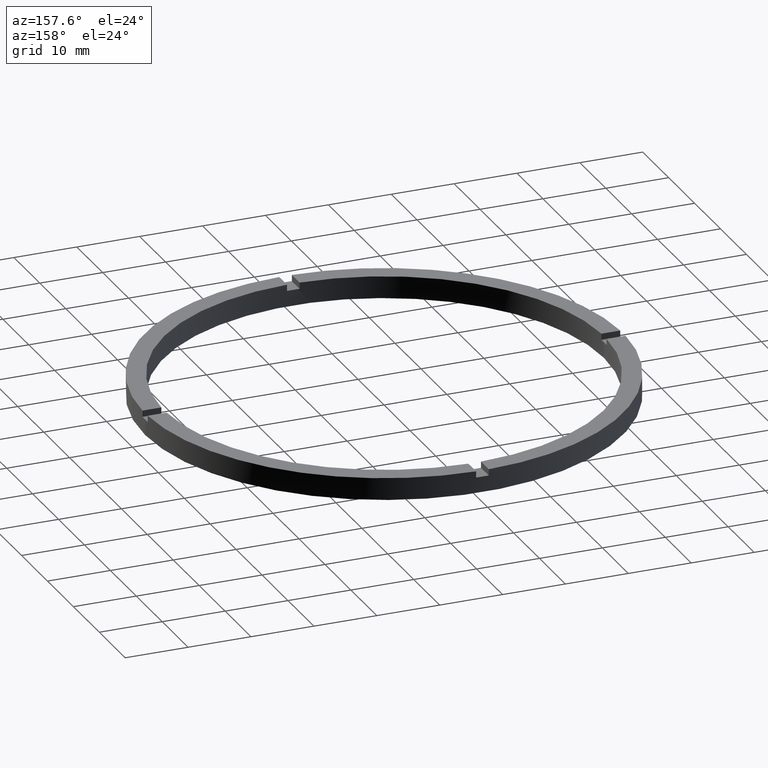
[diagram: clean part render]
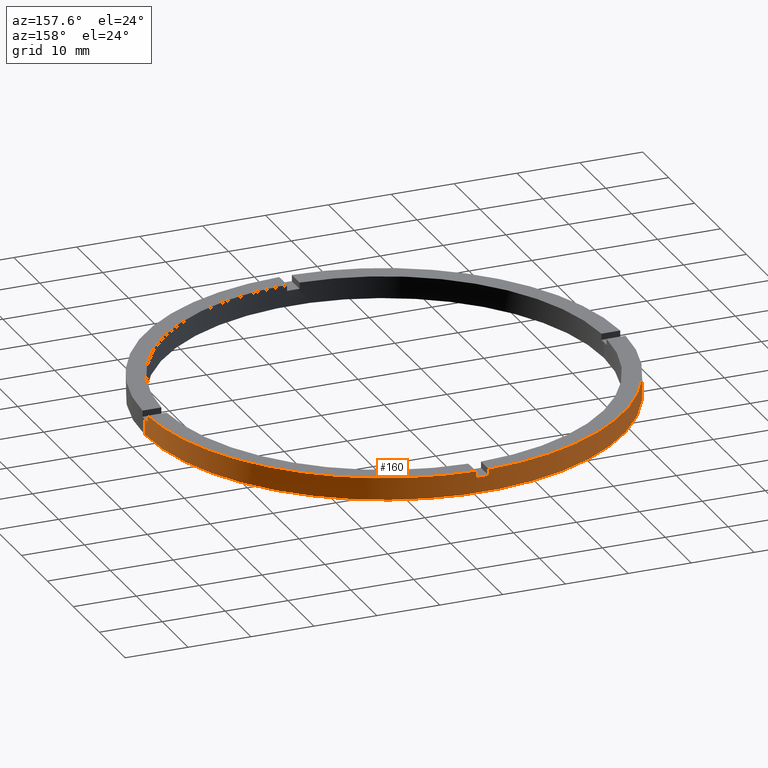
[diagram: same view with one face highlighted and labeled with its STEP entity id]
A machine part, auxiliary view. The second image highlights one B-rep face of the part: STEP entity #160.
In plain terms, the highlighted cylindrical surface (partial cylindrical patch) has radius 38 mm, axis along (-0, -0, -1).
Its self-contained STEP definition (entity closure, byte-faithful):
#6 = DIRECTION ( 'NONE',  ( 0.000000000000000000, -0.000000000000000000, 1.000000000000000000 ) ) ;
#25 = LINE ( 'NONE', #98, #282 ) ;
#26 = EDGE_CURVE ( 'NONE', #92, #496, #721, .T. ) ;
#33 = DIRECTION ( 'NONE',  ( 0.000000000000000000, 0.000000000000000000, 1.000000000000000000 ) ) ;
#34 = CARTESIAN_POINT ( 'NONE',  ( 0.9999999999999746869, 37.98683982644515567, 3.500000000000000000 ) ) ;
#38 = DIRECTION ( 'NONE',  ( -0.000000000000000000, -0.000000000000000000, -1.000000000000000000 ) ) ;
#39 = EDGE_CURVE ( 'NONE', #402, #496, #213, .T. ) ;
#41 = CIRCLE ( 'NONE', #400, 38.00000000000000000 ) ;
#44 = DIRECTION ( 'NONE',  ( 0.000000000000000000, 0.000000000000000000, 1.000000000000000000 ) ) ;
#46 = CARTESIAN_POINT ( 'NONE',  ( 0.000000000000000000, 0.000000000000000000, 2.500000000000000000 ) ) ;
#54 = CARTESIAN_POINT ( 'NONE',  ( 0.000000000000000000, 0.000000000000000000, 3.500000000000000000 ) ) ;
#62 = CARTESIAN_POINT ( 'NONE',  ( -38.00000000000000000, 0.000000000000000000, 2.500000000000000000 ) ) ;
#79 = ORIENTED_EDGE ( 'NONE', *, *, #635, .F. ) ;
#90 = CIRCLE ( 'NONE', #563, 38.00000000000000000 ) ;
#92 = VERTEX_POINT ( 'NONE', #672 ) ;
#98 = CARTESIAN_POINT ( 'NONE',  ( -37.98683982644515567, 0.9999999999999722444, 3.500000000000000000 ) ) ;
#108 = ORIENTED_EDGE ( 'NONE', *, *, #26, .F. ) ;
#110 = ORIENTED_EDGE ( 'NONE', *, *, #199, .T. ) ;
#160 = ADVANCED_FACE ( 'NONE', ( #457 ), #208, .T. ) ;
#171 = VERTEX_POINT ( 'NONE', #508 ) ;
#191 = VERTEX_POINT ( 'NONE', #313 ) ;
#197 = ORIENTED_EDGE ( 'NONE', *, *, #422, .F. ) ;
#199 = EDGE_CURVE ( 'NONE', #665, #476, #728, .T. ) ;
#205 = VECTOR ( 'NONE', #614, 1000.000000000000000 ) ;
#206 = CARTESIAN_POINT ( 'NONE',  ( 0.000000000000000000, 0.000000000000000000, 2.500000000000000000 ) ) ;
#208 = CYLINDRICAL_SURFACE ( 'NONE', #666, 38.00000000000000000 ) ;
#213 = LINE ( 'NONE', #418, #701 ) ;
#218 = ORIENTED_EDGE ( 'NONE', *, *, #39, .T. ) ;
#228 = DIRECTION ( 'NONE',  ( 0.000000000000000000, 0.000000000000000000, 1.000000000000000000 ) ) ;
#229 = VERTEX_POINT ( 'NONE', #62 ) ;
#234 = EDGE_CURVE ( 'NONE', #229, #746, #462, .T. ) ;
#235 = VERTEX_POINT ( 'NONE', #525 ) ;
#242 = CARTESIAN_POINT ( 'NONE',  ( -38.00000000000000000, 0.000000000000000000, 3.500000000000000000 ) ) ;
#252 = ORIENTED_EDGE ( 'NONE', *, *, #324, .T. ) ;
#253 = ORIENTED_EDGE ( 'NONE', *, *, #274, .T. ) ;
#262 = DIRECTION ( 'NONE',  ( -0.000000000000000000, -0.000000000000000000, -1.000000000000000000 ) ) ;
#264 = EDGE_CURVE ( 'NONE', #621, #191, #475, .T. ) ;
#268 = CARTESIAN_POINT ( 'NONE',  ( 0.9999999999999746869, 37.98683982644515567, 2.500000000000000000 ) ) ;
#274 = EDGE_CURVE ( 'NONE', #92, #235, #729, .T. ) ;
#282 = VECTOR ( 'NONE', #228, 1000.000000000000000 ) ;
#291 = DIRECTION ( 'NONE',  ( -0.000000000000000000, -0.000000000000000000, -1.000000000000000000 ) ) ;
#313 = CARTESIAN_POINT ( 'NONE',  ( 38.00000000000000000, 4.653657836759941941E-15, 0.000000000000000000 ) ) ;
#319 = DIRECTION ( 'NONE',  ( 0.000000000000000000, 0.000000000000000000, 1.000000000000000000 ) ) ;
#324 = EDGE_CURVE ( 'NONE', #606, #171, #25, .T. ) ;
#333 = EDGE_CURVE ( 'NONE', #606, #229, #41, .T. ) ;
#397 = DIRECTION ( 'NONE',  ( 1.000000000000000000, 0.000000000000000000, 0.000000000000000000 ) ) ;
#400 = AXIS2_PLACEMENT_3D ( 'NONE', #206, #319, #397 ) ;
#402 = VERTEX_POINT ( 'NONE', #268 ) ;
#418 = CARTESIAN_POINT ( 'NONE',  ( 0.9999999999999746869, 37.98683982644515567, 3.500000000000000000 ) ) ;
#419 = CARTESIAN_POINT ( 'NONE',  ( 0.000000000000000000, 0.000000000000000000, 0.000000000000000000 ) ) ;
#422 = EDGE_CURVE ( 'NONE', #665, #171, #568, .T. ) ;
#439 = DIRECTION ( 'NONE',  ( -0.000000000000000000, -0.000000000000000000, -1.000000000000000000 ) ) ;
#456 = ORIENTED_EDGE ( 'NONE', *, *, #640, .F. ) ;
#457 = FACE_OUTER_BOUND ( 'NONE', #486, .T. ) ;
#462 = LINE ( 'NONE', #242, #690 ) ;
#469 = VECTOR ( 'NONE', #262, 1000.000000000000000 ) ;
#470 = DIRECTION ( 'NONE',  ( 1.000000000000000000, 0.000000000000000000, 0.000000000000000000 ) ) ;
#471 = ORIENTED_EDGE ( 'NONE', *, *, #234, .F. ) ;
#475 = LINE ( 'NONE', #663, #738 ) ;
#476 = VERTEX_POINT ( 'NONE', #595 ) ;
#477 = EDGE_CURVE ( 'NONE', #191, #746, #581, .T. ) ;
#486 = EDGE_LOOP ( 'NONE', ( #79, #494, #618, #471, #634, #252, #197, #110, #456, #218, #108, #253 ) ) ;
#494 = ORIENTED_EDGE ( 'NONE', *, *, #264, .T. ) ;
#496 = VERTEX_POINT ( 'NONE', #34 ) ;
#499 = DIRECTION ( 'NONE',  ( 1.000000000000000000, 0.000000000000000000, 0.000000000000000000 ) ) ;
#508 = CARTESIAN_POINT ( 'NONE',  ( -37.98683982644515567, 0.9999999999999722444, 3.500000000000000000 ) ) ;
#515 = AXIS2_PLACEMENT_3D ( 'NONE', #575, #689, #470 ) ;
#525 = CARTESIAN_POINT ( 'NONE',  ( 37.98683982644516277, 0.9999999999998425704, 2.500000000000000000 ) ) ;
#540 = CARTESIAN_POINT ( 'NONE',  ( -37.98683982644515567, 0.9999999999999722444, 2.500000000000000000 ) ) ;
#549 = DIRECTION ( 'NONE',  ( 1.000000000000000000, 0.000000000000000000, 0.000000000000000000 ) ) ;
#563 = AXIS2_PLACEMENT_3D ( 'NONE', #46, #6, #499 ) ;
#567 = AXIS2_PLACEMENT_3D ( 'NONE', #603, #44, #765 ) ;
#568 = CIRCLE ( 'NONE', #676, 38.00000000000000000 ) ;
#570 = DIRECTION ( 'NONE',  ( 1.000000000000000000, 0.000000000000000000, 0.000000000000000000 ) ) ;
#575 = CARTESIAN_POINT ( 'NONE',  ( 0.000000000000000000, 0.000000000000000000, 2.500000000000000000 ) ) ;
#581 = CIRCLE ( 'NONE', #620, 38.00000000000000000 ) ;
#595 = CARTESIAN_POINT ( 'NONE',  ( -1.000000000000025313, 37.98683982644515567, 2.500000000000000000 ) ) ;
#603 = CARTESIAN_POINT ( 'NONE',  ( 0.000000000000000000, 0.000000000000000000, 3.500000000000000000 ) ) ;
#606 = VERTEX_POINT ( 'NONE', #540 ) ;
#612 = CIRCLE ( 'NONE', #515, 38.00000000000000000 ) ;
#614 = DIRECTION ( 'NONE',  ( -0.000000000000000000, -0.000000000000000000, -1.000000000000000000 ) ) ;
#618 = ORIENTED_EDGE ( 'NONE', *, *, #477, .T. ) ;
#620 = AXIS2_PLACEMENT_3D ( 'NONE', #419, #777, #570 ) ;
#621 = VERTEX_POINT ( 'NONE', #696 ) ;
#631 = CARTESIAN_POINT ( 'NONE',  ( -38.00000000000000000, 0.000000000000000000, 0.000000000000000000 ) ) ;
#632 = DIRECTION ( 'NONE',  ( 0.000000000000000000, 0.000000000000000000, 1.000000000000000000 ) ) ;
#634 = ORIENTED_EDGE ( 'NONE', *, *, #333, .F. ) ;
#635 = EDGE_CURVE ( 'NONE', #621, #235, #612, .T. ) ;
#640 = EDGE_CURVE ( 'NONE', #402, #476, #90, .T. ) ;
#663 = CARTESIAN_POINT ( 'NONE',  ( 38.00000000000000000, 4.653657836759941941E-15, 3.500000000000000000 ) ) ;
#665 = VERTEX_POINT ( 'NONE', #727 ) ;
#666 = AXIS2_PLACEMENT_3D ( 'NONE', #54, #38, #778 ) ;
#672 = CARTESIAN_POINT ( 'NONE',  ( 37.98683982644516277, 0.9999999999998425704, 3.500000000000000000 ) ) ;
#676 = AXIS2_PLACEMENT_3D ( 'NONE', #783, #632, #549 ) ;
#689 = DIRECTION ( 'NONE',  ( 0.000000000000000000, 0.000000000000000000, 1.000000000000000000 ) ) ;
#690 = VECTOR ( 'NONE', #291, 1000.000000000000000 ) ;
#692 = CARTESIAN_POINT ( 'NONE',  ( -1.000000000000025313, 37.98683982644515567, 3.500000000000000000 ) ) ;
#696 = CARTESIAN_POINT ( 'NONE',  ( 38.00000000000000000, 4.653657836759941941E-15, 2.500000000000000000 ) ) ;
#701 = VECTOR ( 'NONE', #33, 1000.000000000000000 ) ;
#721 = CIRCLE ( 'NONE', #567, 38.00000000000000000 ) ;
#723 = CARTESIAN_POINT ( 'NONE',  ( 37.98683982644516277, 0.9999999999998425704, 3.500000000000000000 ) ) ;
#727 = CARTESIAN_POINT ( 'NONE',  ( -1.000000000000025313, 37.98683982644515567, 3.500000000000000000 ) ) ;
#728 = LINE ( 'NONE', #692, #205 ) ;
#729 = LINE ( 'NONE', #723, #469 ) ;
#738 = VECTOR ( 'NONE', #439, 1000.000000000000000 ) ;
#746 = VERTEX_POINT ( 'NONE', #631 ) ;
#765 = DIRECTION ( 'NONE',  ( 1.000000000000000000, 0.000000000000000000, 0.000000000000000000 ) ) ;
#777 = DIRECTION ( 'NONE',  ( 0.000000000000000000, 0.000000000000000000, 1.000000000000000000 ) ) ;
#778 = DIRECTION ( 'NONE',  ( -1.000000000000000000, 0.000000000000000000, 0.000000000000000000 ) ) ;
#783 = CARTESIAN_POINT ( 'NONE',  ( 0.000000000000000000, 0.000000000000000000, 3.500000000000000000 ) ) ;